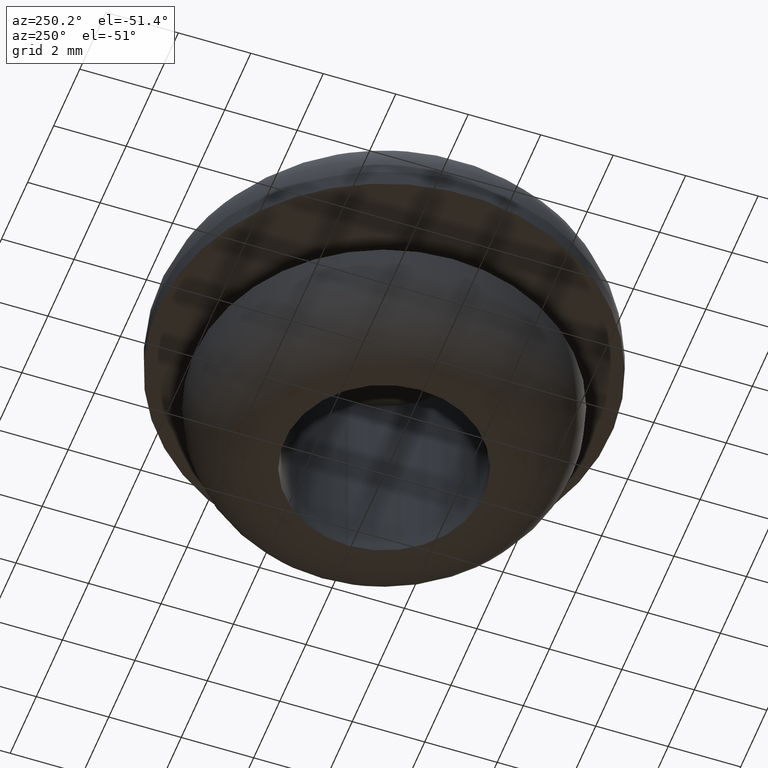
[diagram: clean part render]
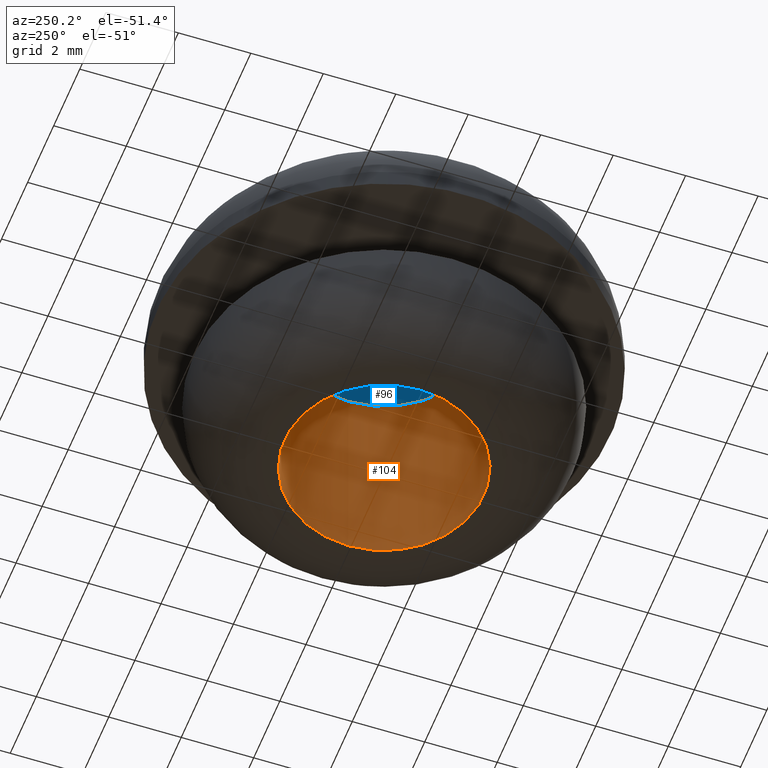
[diagram: same view with the hole feature highlighted: cylindrical wall and planar end face, labeled with their STEP entity ids]
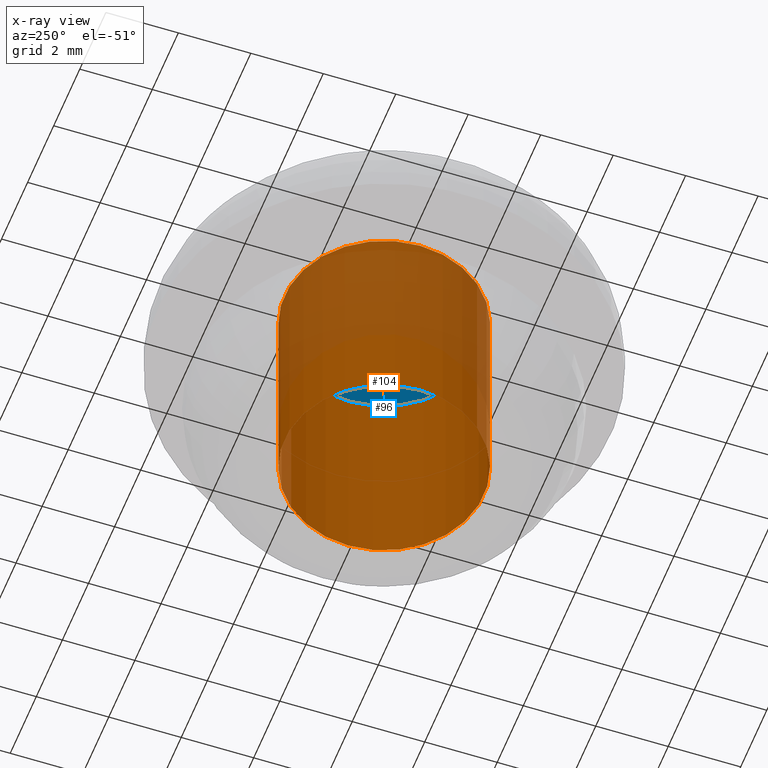
[diagram: x-ray of the same camera — body ghosted, the hole faces saturated]
A machine part, auxiliary view. The highlighted faces form one hole feature of diameter 5.5 mm: the cylindrical wall (entity #104, orange) and its adjacent planar end face (entity #96, blue) — they share a circular edge in the B-rep.
The next image is the same camera in x-ray (body ghosted, the hole faces saturated) — the bore reads through the body.
Wall:
#23=FACE_BOUND('',#51,.T.);
#26=CYLINDRICAL_SURFACE('',#123,2.75);
#35=FACE_OUTER_BOUND('',#50,.T.);
#50=EDGE_LOOP('',(#90));
#51=EDGE_LOOP('',(#91));
#52=CIRCLE('',#108,2.75);
#58=CIRCLE('',#119,2.75);
#60=VERTEX_POINT('',#162);
#66=VERTEX_POINT('',#179);
#68=EDGE_CURVE('',#60,#60,#52,.T.);
#74=EDGE_CURVE('',#66,#66,#58,.T.);
#90=ORIENTED_EDGE('',*,*,#68,.T.);
#91=ORIENTED_EDGE('',*,*,#74,.F.);
#104=ADVANCED_FACE('',(#35,#23),#26,.F.);
#108=AXIS2_PLACEMENT_3D('',#163,#128,#129);
#119=AXIS2_PLACEMENT_3D('',#180,#150,#151);
#123=AXIS2_PLACEMENT_3D('',#185,#158,#159);
#128=DIRECTION('center_axis',(0.,0.,1.));
#129=DIRECTION('ref_axis',(1.,0.,0.));
#150=DIRECTION('center_axis',(0.,0.,1.));
#151=DIRECTION('ref_axis',(1.,0.,0.));
#158=DIRECTION('center_axis',(0.,0.,1.));
#159=DIRECTION('ref_axis',(1.,0.,0.));
#162=CARTESIAN_POINT('',(-2.75,3.36777869765522E-16,2.));
#163=CARTESIAN_POINT('Origin',(0.,0.,2.));
#179=CARTESIAN_POINT('',(2.75,0.,-4.));
#180=CARTESIAN_POINT('Origin',(0.,0.,-4.));
#185=CARTESIAN_POINT('Origin',(0.,0.,-0.75));
End face:
#27=FACE_OUTER_BOUND('',#36,.T.);
#36=EDGE_LOOP('',(#76));
#52=CIRCLE('',#108,2.75);
#60=VERTEX_POINT('',#162);
#68=EDGE_CURVE('',#60,#60,#52,.T.);
#76=ORIENTED_EDGE('',*,*,#68,.F.);
#92=PLANE('',#107);
#96=ADVANCED_FACE('',(#27),#92,.F.);
#107=AXIS2_PLACEMENT_3D('',#161,#126,#127);
#108=AXIS2_PLACEMENT_3D('',#163,#128,#129);
#126=DIRECTION('center_axis',(0.,0.,1.));
#127=DIRECTION('ref_axis',(1.,0.,0.));
#128=DIRECTION('center_axis',(0.,0.,1.));
#129=DIRECTION('ref_axis',(1.,0.,0.));
#161=CARTESIAN_POINT('Origin',(1.12172627376305E-16,4.20539024479226E-17,
2.));
#162=CARTESIAN_POINT('',(-2.75,3.36777869765522E-16,2.));
#163=CARTESIAN_POINT('Origin',(0.,0.,2.));